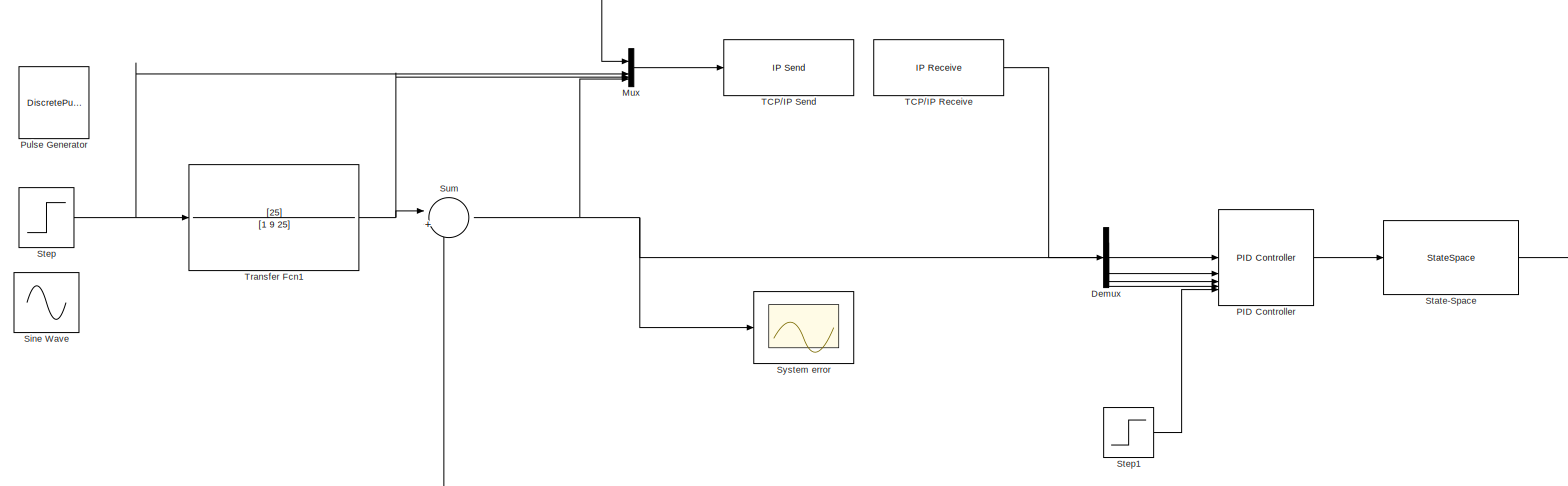
[diagram: root canvas - part 1/1, most of the canvas]
MODEL slx_5f4be7a4b9c0
KIND model
CONFIG AbsTol = auto
CONFIG EnableMultiTasking = off
CONFIG FixedStep = auto
CONFIG MaxStep = auto
CONFIG MinStep = auto
CONFIG RelTol = 1e-3
CONFIG SampleTimeConstraint = Unconstrained
CONFIG SolverName = VariableStepAuto
CONFIG StartTime = 0
CONFIG StopTime = 30.0
BLOCK [Demux] Demux
  Outputs = 3
BLOCK [Mux] Mux
  DisplayOption = bar
BLOCK [Reference] PID Controller  REF=slpidlib/PID Controller
  LibrarySourceBlock = simulink/Continuous/PID Controller
  SourceBlock = slpidlib/PID Controller
  SourceType = PID 1dof
BLOCK [DiscretePulseGenerator] Pulse Generator
  Amplitude = 3
  Period = 10
  PulseType = Time based
  PulseWidth = 5
BLOCK [Sin] Sine Wave
  Amplitude = 3
  Frequency = 4
  SampleTime = 0
BLOCK [StateSpace] State-Space
  A = 3
  C = 2
  ContinuousStateAttributes = 'Controlled_Object'
  D = 0
  InitialCondition = 0
  ParameterTunability = Optimized
BLOCK [Step] Step
  After = -1
  Before = -1
  SampleTime = 0
BLOCK [Step] Step1
  After = 100
  Before = 100
  SampleTime = 0
BLOCK [Sum] Sum
  Inputs = |+-
BLOCK [Scope] System error
  Floating = off
  NumInputPorts = 1
  ScopeSpecificationString = Simulink.scopes.TimeScopeBlockCfg('CurrentConfiguration', extmgr.ConfigurationSet(extmgr.Configuration('Core','General UI',true),extmgr.Configuration('Core','Source UI',true),extmgr.Configuration('Sources','WiredSimulink',true),extmgr.Configuration('Visuals','Time Domain',true,'SerializedDisplays',{struct('MinYLimReal','-0.51305','MaxYLimReal','0.30982','YLabelReal','','MinYLimMag','0.00000','MaxY...<+1352ch>
BLOCK [Reference] TCP//IP Receive  REF=instrumentlib/TCP//IP Receive
  SourceBlock = instrumentlib/TCP//IP Receive
  SourceType = instrument.system.TCPIPReceive
BLOCK [Reference] TCP//IP Send  REF=instrumentlib/TCP//IP Send
  SourceBlock = instrumentlib/TCP//IP Send
  SourceType = instrument.system.TCPIPSend
BLOCK [TransferFcn] Transfer Fcn1
  ContinuousStateAttributes = 'Reference_Model'
  Denominator = [1 9 25]
  Numerator = [25]
LINE Demux:1 -> PID Controller:2
LINE Demux:2 -> PID Controller:3
LINE Demux:3 -> PID Controller:4
LINE Mux:1 -> TCP//IP Send:1
LINE PID Controller:1 -> State-Space:1
NET State-Space:1 -> Mux:1, Sum:2
LINE Step1:1 -> PID Controller:5
NET Step:1 -> Mux:2, Transfer Fcn1:1
NET Sum:1 -> Mux:4, PID Controller:1, System error:1
LINE TCP//IP Receive:1 -> Demux:1
NET Transfer Fcn1:1 -> Mux:3, Sum:1
note: NET lines group one-source signal fan-out (src -> all destinations, sorted); 1:1 wires keep LINE
